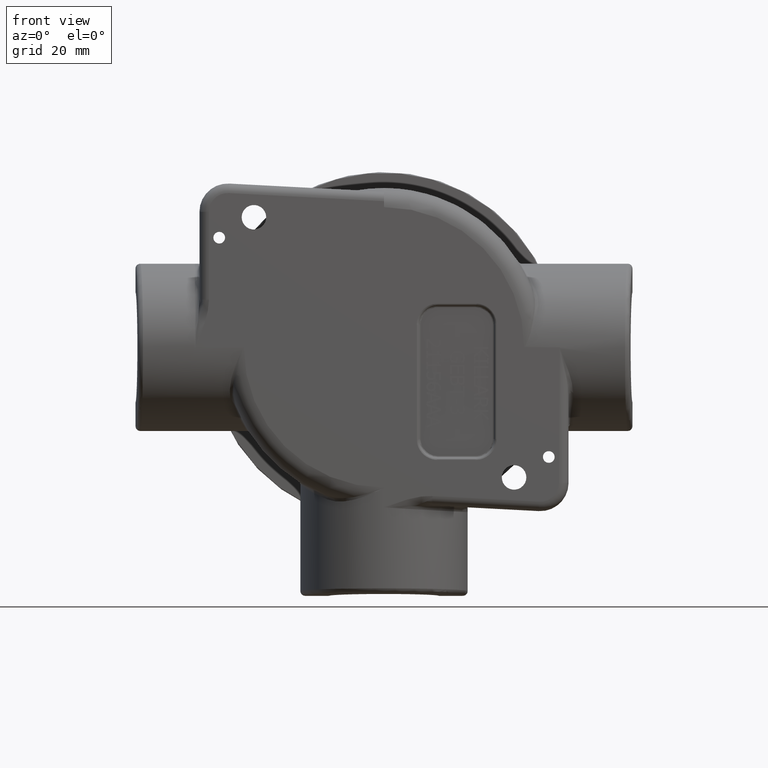
[diagram: clean part render]
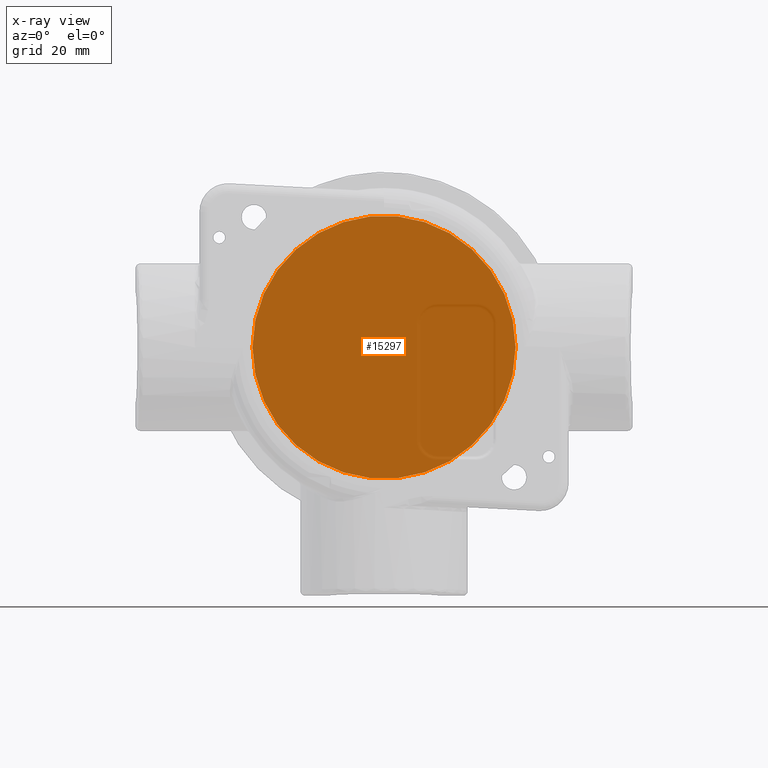
[diagram: x-ray — body ghosted, one internal face saturated and labeled with its STEP entity id]
A machine part, front view, then the same camera in x-ray: the body is ghosted and one INTERNAL B-rep face — a face not visible from any outside direction — is saturated and labeled: STEP entity #15297.
In plain terms, the highlighted planar face has unit normal (-0, 1, -0).
Its self-contained STEP definition (entity closure, byte-faithful):
#645=PLANE('',#16367);
#4165=FACE_OUTER_BOUND('',#5090,.T.);
#5090=EDGE_LOOP('',(#14159,#14160));
#5999=CIRCLE('',#16368,1.72067945491223);
#6000=CIRCLE('',#16369,1.72067945491223);
#7436=VERTEX_POINT('',#55105);
#7437=VERTEX_POINT('',#55106);
#9679=EDGE_CURVE('',#7436,#7437,#5999,.F.);
#9680=EDGE_CURVE('',#7437,#7436,#6000,.F.);
#14159=ORIENTED_EDGE('',*,*,#9679,.T.);
#14160=ORIENTED_EDGE('',*,*,#9680,.T.);
#15297=ADVANCED_FACE('',(#4165),#645,.F.);
#16367=AXIS2_PLACEMENT_3D('',#55104,#19661,#19662);
#16368=AXIS2_PLACEMENT_3D('',#55107,#19663,#19664);
#16369=AXIS2_PLACEMENT_3D('',#55108,#19665,#19666);
#19661=DIRECTION('center_axis',(0.,0.,1.));
#19662=DIRECTION('ref_axis',(1.,0.,0.));
#19663=DIRECTION('center_axis',(0.,0.,1.));
#19664=DIRECTION('ref_axis',(1.,0.,0.));
#19665=DIRECTION('center_axis',(0.,0.,1.));
#19666=DIRECTION('ref_axis',(1.,0.,0.));
#55104=CARTESIAN_POINT('Origin',(0.,0.,1.03125));
#55105=CARTESIAN_POINT('',(1.72067945491223,0.,1.03125));
#55106=CARTESIAN_POINT('',(-1.72067945491223,-2.10722458681688E-16,1.03125));
#55107=CARTESIAN_POINT('Origin',(0.,0.,1.03125));
#55108=CARTESIAN_POINT('Origin',(0.,0.,1.03125));